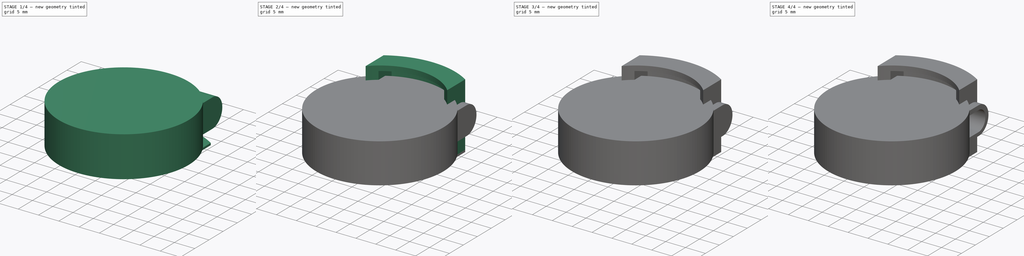
[diagram: build sequence overview — one tinted view per stage of 4, left to right]
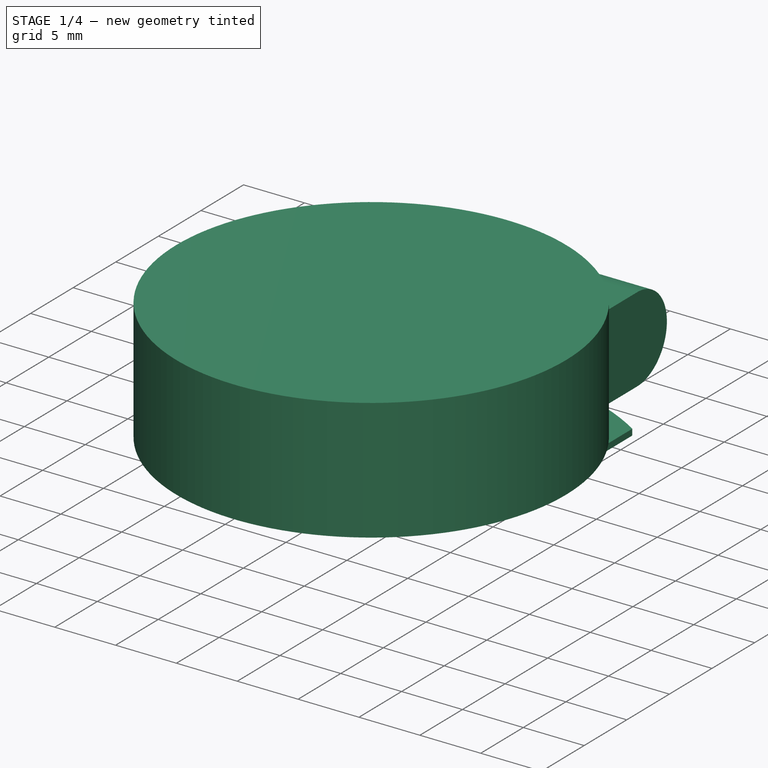
[diagram: stage 1 of 4 — iso view after this stage's code; geometry added in this stage tinted green]
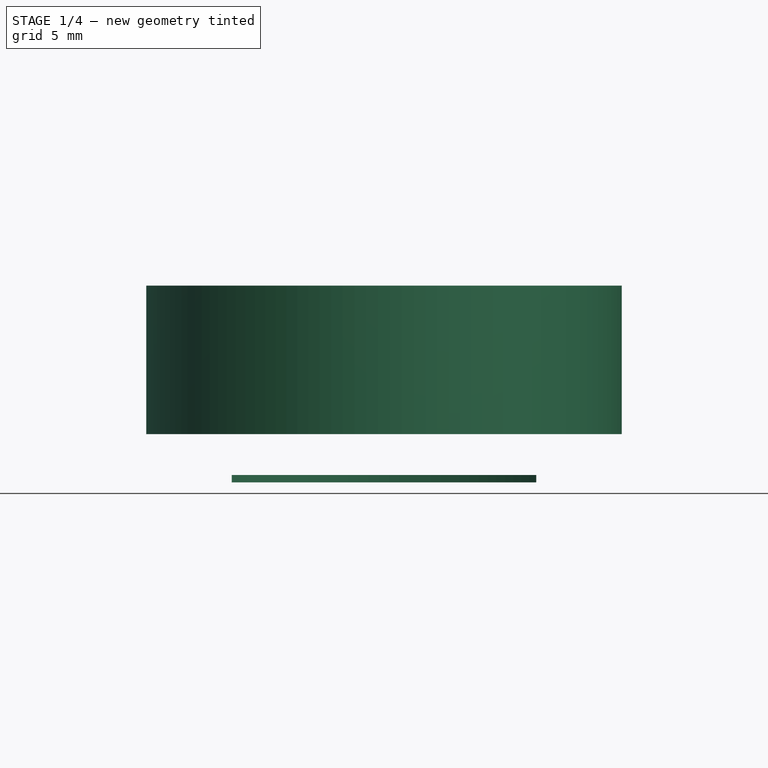
[diagram: stage 1 of 4 — front view after this stage's code; geometry added in this stage tinted green]
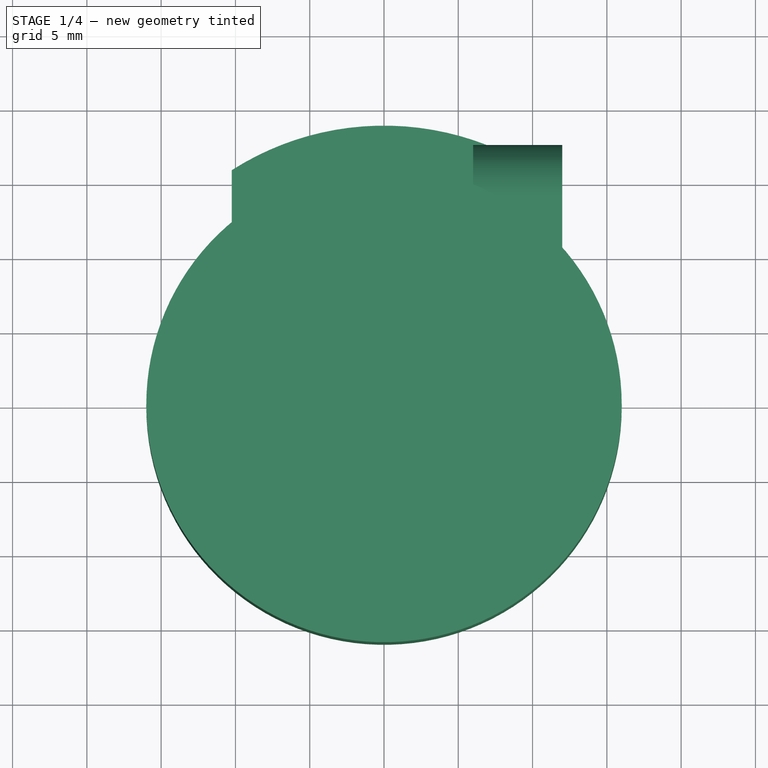
[diagram: stage 1 of 4 — top view after this stage's code; geometry added in this stage tinted green]
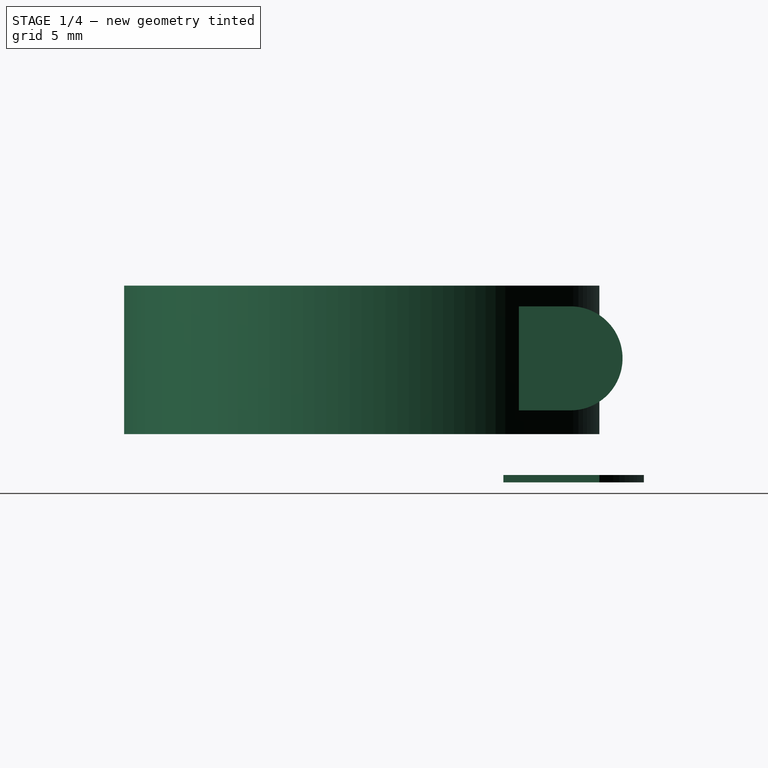
[diagram: stage 1 of 4 — right view after this stage's code; geometry added in this stage tinted green]
FCSTD DOCUMENT  (FreeCAD 0.18R4 (GitTag))
Label: MotorCover
License: All rights reserved
LicenseURL: http://en.wikipedia.org/wiki/All_rights_reserved
objects: Part::Extrusion×5, Sketcher::SketchObject×4, Part::Cylinder×2, Part::MultiFuse×2, Part::Cut×2, PartDesign::Body×1
note: 16 computed .brp shape members not serialized (recipe doc carries the construction recipe); baked Part::Feature solids carry a one-line shape summary decoded from their .brp

FEATURE [Sketcher::SketchObject] Sketch002  label="Cable"
  MapMode = 5
  Placement = pos=(0,0,0) rot=(0.57735,0.57735,0.57735;2.0944rad)
  Support = -> [YZ_Plane]
  sketch-geometry (4):
    g0: ArcOfCircle CenterX=-0.101328 CenterY=0.0569919 CenterZ=0 NormalX=0 NormalY=0 NormalZ=1 AngleXU=0 Radius=3.5 StartAngle=6.28318 EndAngle=9.44106
    g1: LineSegment StartX=3.39867 StartY=0.0569739 StartZ=0 EndX=3.39867 EndY=-8 EndZ=0
    g2: LineSegment StartX=-3.60086 StartY=-8 StartZ=0 EndX=3.39867 EndY=-8 EndZ=0
    g3: LineSegment StartX=-3.60086 StartY=0 StartZ=0 EndX=-3.60086 EndY=-8 EndZ=0
  constraints (11):
    c: Diameter(g0) = 7
    c: Vertical(g1)
    c: Tangent(g1,g0)
    c: Coincident(g0,g1)
    c: Coincident(g2,g1)
    c: Horizontal(g2)
    c: PointOnObject(g0,g-1)
    c: Coincident(g3,g0)
    c: Coincident(g3,g2)
    c: Vertical(g3)
    c: DistanceY(g3,g3) = 8
FEATURE [PartDesign::Body] Body
  Group = -> [Sketch,Sketch001,Sketch002]
  Origin = -> Origin
FEATURE [Part::Extrusion] Extrude003
  Base = -> Sketch002
  Dir = (1,-2e-16,3e-16)
  DirMode = 2
  FaceMakerClass = Part::FaceMakerBullseye
  LengthFwd = 5
  LengthRev = 1
  Placement = pos=(7,14,7) rot=(1,0,0;4.71239rad)
  Solid = true
  Symmetric = false
FEATURE [Part::Cylinder] Cylinder003
  Angle = 360
  AttacherType = Attacher::AttachEngine3D
  Height = 10
  Placement = pos=(0,0,2) rot=(0,0,1;0rad)
  Radius = 16
FEATURE [Part::Extrusion] Extrude005
  Base = -> Sketch
  Dir = (0,0,1)
  DirMode = 2
  FaceMakerClass = Part::FaceMakerBullseye
  LengthFwd = 0.5
  LengthRev = 0
  Placement = pos=(0,0,-1.25) rot=(0,0,1;0rad)
  Solid = true
  Symmetric = false
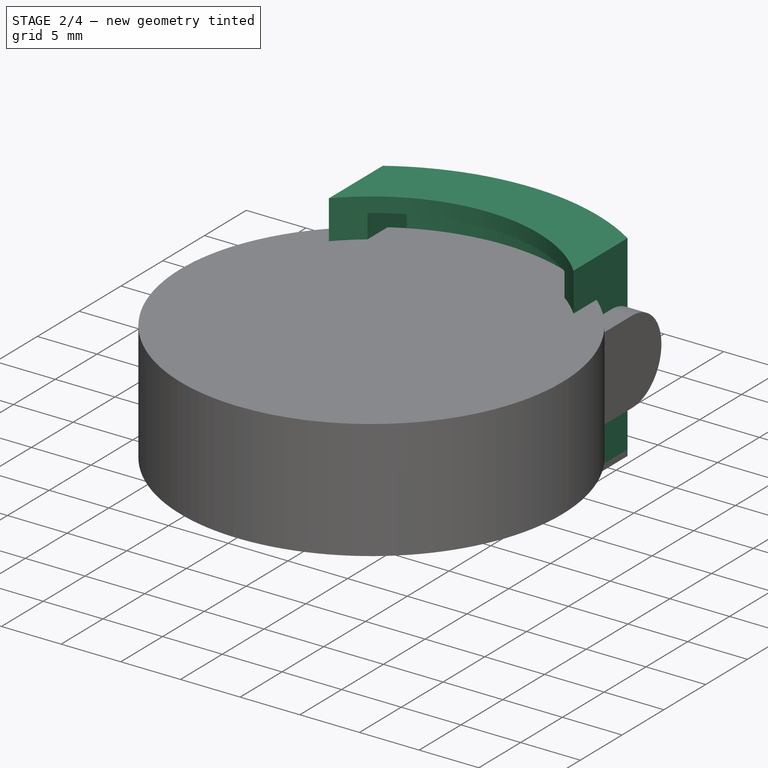
[diagram: stage 2 of 4 — iso view after this stage's code; geometry added in this stage tinted green]
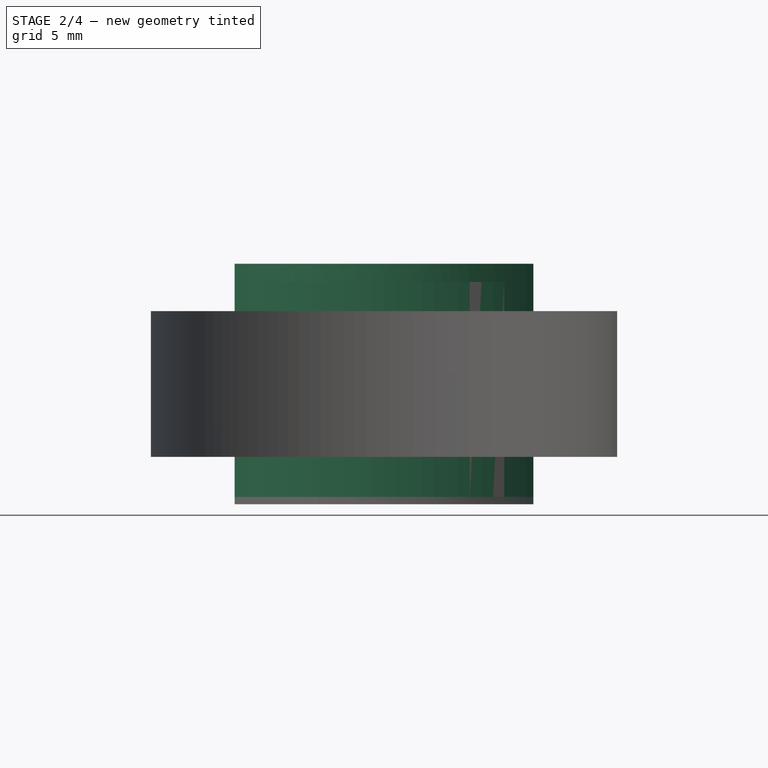
[diagram: stage 2 of 4 — front view after this stage's code; geometry added in this stage tinted green]
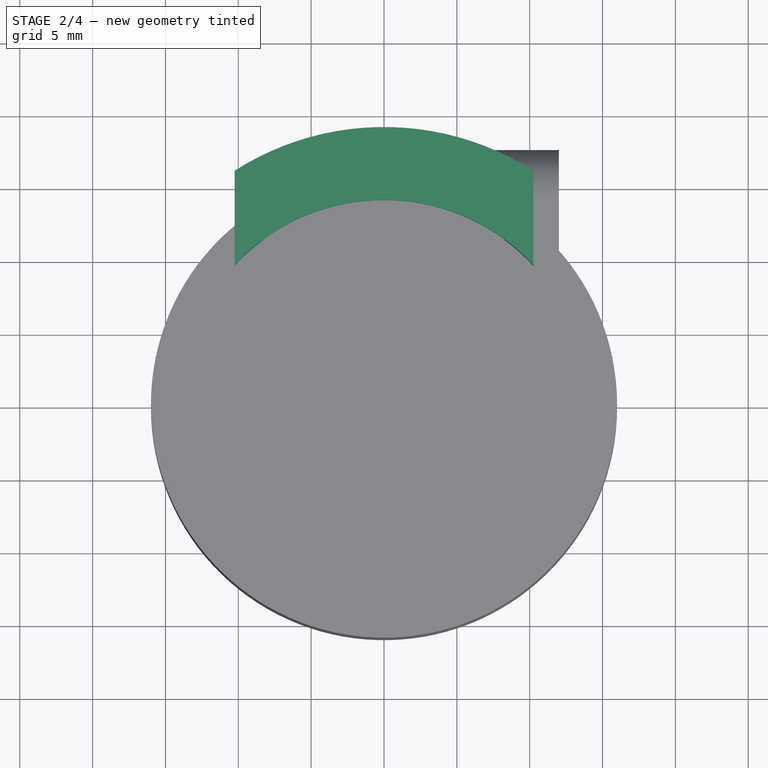
[diagram: stage 2 of 4 — top view after this stage's code; geometry added in this stage tinted green]
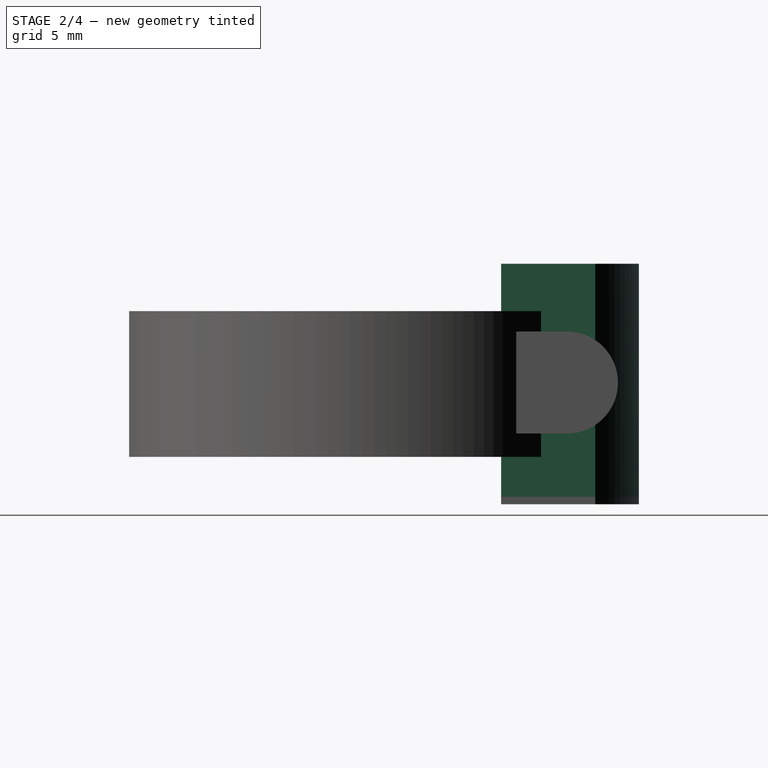
[diagram: stage 2 of 4 — right view after this stage's code; geometry added in this stage tinted green]
FEATURE [Sketcher::SketchObject] Sketch  label="Cover"
  MapMode = 5
  Support = -> [XY_Plane]
  sketch-geometry (7):
    g0: Circle [constr] CenterX=0 CenterY=0 CenterZ=0 NormalX=0 NormalY=0 NormalZ=1 AngleXU=0 Radius=14
    g1: LineSegment [constr] StartX=-7.25 StartY=11.9765 StartZ=0 EndX=7.25 EndY=11.9765 EndZ=0
    g2: ArcOfCircle CenterX=0 CenterY=0 CenterZ=0 NormalX=0 NormalY=0 NormalZ=1 AngleXU=0 Radius=19 StartAngle=1.00098 EndAngle=2.14061
    g3: LineSegment StartX=10.25 StartY=15.998 StartZ=0 EndX=10.25 EndY=9.53612 EndZ=0
    g4: LineSegment StartX=-10.25 StartY=9.53612 StartZ=0 EndX=-10.25 EndY=15.998 EndZ=0
    g5: LineSegment [constr] StartX=7.25 StartY=11.9765 StartZ=0 EndX=10.25 EndY=11.9765 EndZ=0
    g6: ArcOfCircle CenterX=0 CenterY=0 CenterZ=0 NormalX=0 NormalY=0 NormalZ=1 AngleXU=0 Radius=14 StartAngle=0.749334 EndAngle=2.39226
  constraints (21):
    c: Coincident(g0,g-1)
    c: Diameter(g0) = 28
    c: PointOnObject(g1,g0)
    c: PointOnObject(g1,g0)
    c: Horizontal(g1)
    c: DistanceX(g1,g1) = 14.5
    c: Coincident(g2,g-1)
    c: Diameter(g2) = 38
    c: PointOnObject(g3,g0)
    c: Vertical(g3)
    c: Vertical(g4)
    c: Equal(g4,g3)
    c: Coincident(g5,g1)
    c: Horizontal(g5)
    c: DistanceX(g5,g5) = 3
    c: Coincident(g6,g2)
    c: Coincident(g6,g4)
    c: Coincident(g6,g3)
    c: Coincident(g2,g3)
    c: Coincident(g2,g4)
    c: PointOnObject(g5,g3)
FEATURE [Sketcher::SketchObject] Sketch001  label="Cutout"
  MapMode = 5
  Support = -> [XY_Plane]
  sketch-geometry (13):
    g0: ArcOfCircle [constr] CenterX=0 CenterY=0 CenterZ=0 NormalX=0 NormalY=0 NormalZ=1 AngleXU=0 Radius=14 StartAngle=0.940622 EndAngle=2.39226
    g1: ArcOfCircle CenterX=0 CenterY=0 CenterZ=0 NormalX=0 NormalY=0 NormalZ=1 AngleXU=0 Radius=19 StartAngle=1.00098 EndAngle=2.14061
    g2: LineSegment StartX=10.25 StartY=15.998 StartZ=0 EndX=10.25 EndY=9.53612 EndZ=0
    g3: LineSegment StartX=-10.25 StartY=9.53612 StartZ=0 EndX=-10.25 EndY=15.998 EndZ=0
    g4: ArcOfCircle CenterX=0 CenterY=0 CenterZ=0 NormalX=0 NormalY=0 NormalZ=1 AngleXU=0 Radius=18 StartAngle=1.09468 EndAngle=2.04692
    g5: LineSegment [constr] StartX=8.25 StartY=15.998 StartZ=0 EndX=10.25 EndY=15.998 EndZ=0
    g6: LineSegment [constr] StartX=-8.25 StartY=15.998 StartZ=0 EndX=-10.25 EndY=15.998 EndZ=0
    g7: LineSegment [constr] StartX=-7.25 StartY=11.9765 StartZ=0 EndX=-10.25 EndY=11.9765 EndZ=0
    g8: LineSegment StartX=-8.25 StartY=15.998 StartZ=0 EndX=-8.25 EndY=11.3109 EndZ=0
    g9: ArcOfCircle CenterX=0 CenterY=0 CenterZ=0 NormalX=0 NormalY=0 NormalZ=1 AngleXU=0 Radius=14 StartAngle=2.20097 EndAngle=2.39226
    g10: LineSegment StartX=8.25 StartY=15.998 StartZ=0 EndX=8.25 EndY=11.3109 EndZ=0
    g11: ArcOfCircle CenterX=0 CenterY=0 CenterZ=0 NormalX=0 NormalY=0 NormalZ=1 AngleXU=0 Radius=14 StartAngle=0.749334 EndAngle=0.940622
    g12: LineSegment [constr] StartX=10.25 StartY=11.9765 StartZ=0 EndX=7.25 EndY=11.9765 EndZ=0
  constraints (41):
    c: Coincident(g0,g-1)
    c: Diameter(g0) = 28
    c: PointOnObject(g7,g0)
    c: Coincident(g1,g-1)
    c: Diameter(g1) = 38
    c: Vertical(g2)
    c: Vertical(g3)
    c: Equal(g3,g2)
    c: Coincident(g1,g2)
    c: Coincident(g1,g3)
    c: Coincident(g4,g1)
    c: Radius(g4) = 18
    c: PointOnObject(g5,g2)
    c: Horizontal(g5)
    c: Coincident(g6,g4)
    c: Horizontal(g6)
    c: Equal(g6,g5)
    c: PointOnObject(g6,g3)
    c: PointOnObject(g7,g3)
    c: Horizontal(g7)
    c: DistanceX(g7,g7) = 3
    c: Coincident(g5,g4)
    c: DistanceX(g6,g6) = 2
    c: Coincident(g8,g4)
    c: PointOnObject(g8,g0)
    c: Vertical(g8)
    c: Coincident(g9,g1)
    c: Coincident(g9,g3)
    c: Coincident(g9,g8)
    c: Coincident(g10,g4)
    c: Vertical(g10)
    c: PointOnObject(g0,g3)
    c: Coincident(g11,g1)
    c: Coincident(g11,g10)
    c: Coincident(g11,g2)
    c: Coincident(g0,g10)
    c: PointOnObject(g12,g2)
    c: PointOnObject(g12,g0)
    c: Horizontal(g12)
    c: Equal(g7,g12)
    c: DistanceX(g7,g12) = 14.5
FEATURE [Part::Extrusion] Extrude
  Base = -> Sketch001
  Dir = (0,0,1)
  DirMode = 2
  FaceMakerClass = Part::FaceMakerBullseye
  LengthFwd = 14
  LengthRev = 0.75
  Solid = true
  Symmetric = false
FEATURE [Part::Extrusion] Extrude002
  Base = -> Sketch
  Dir = (0,0,1)
  DirMode = 2
  FaceMakerClass = Part::FaceMakerBullseye
  LengthFwd = 1.25
  LengthRev = 0
  Placement = pos=(0,0,14) rot=(0,0,1;0rad)
  Solid = true
  Symmetric = false
FEATURE [Part::MultiFuse] Fusion
  Shapes = -> [Extrude002,Extrude,Extrude005]
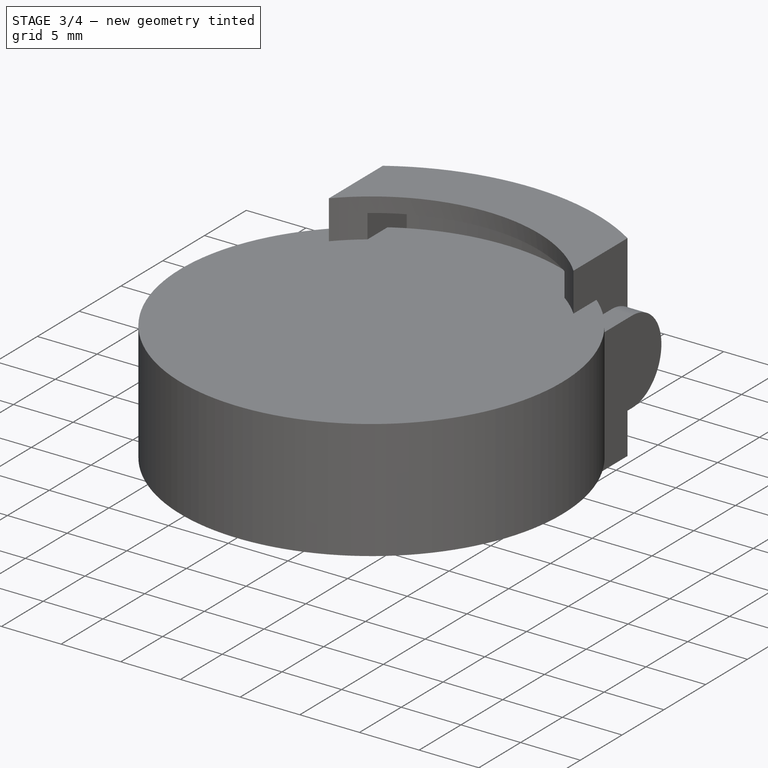
[diagram: stage 3 of 4 — iso view after this stage's code; geometry added in this stage tinted green]
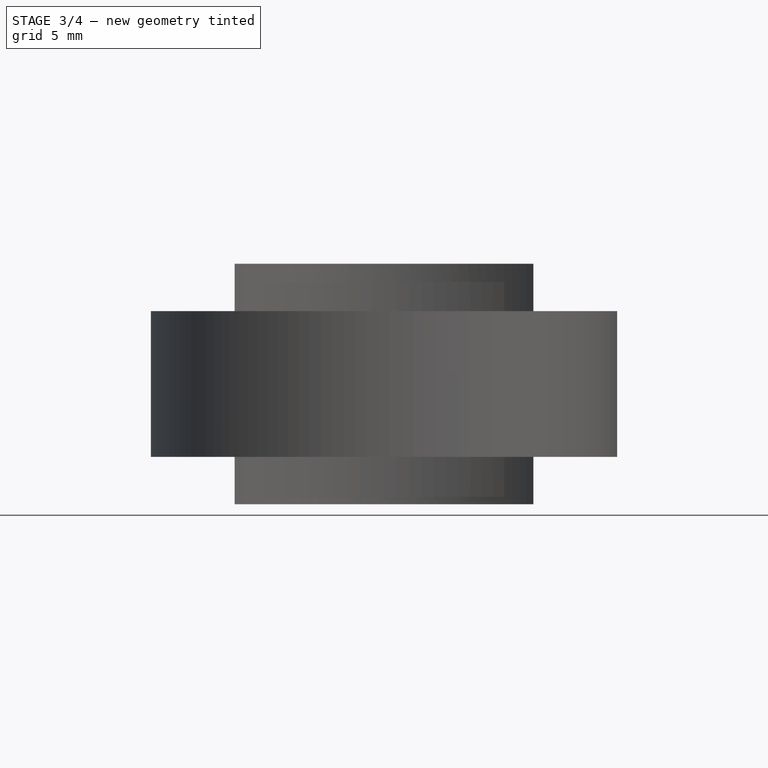
[diagram: stage 3 of 4 — front view after this stage's code; geometry added in this stage tinted green]
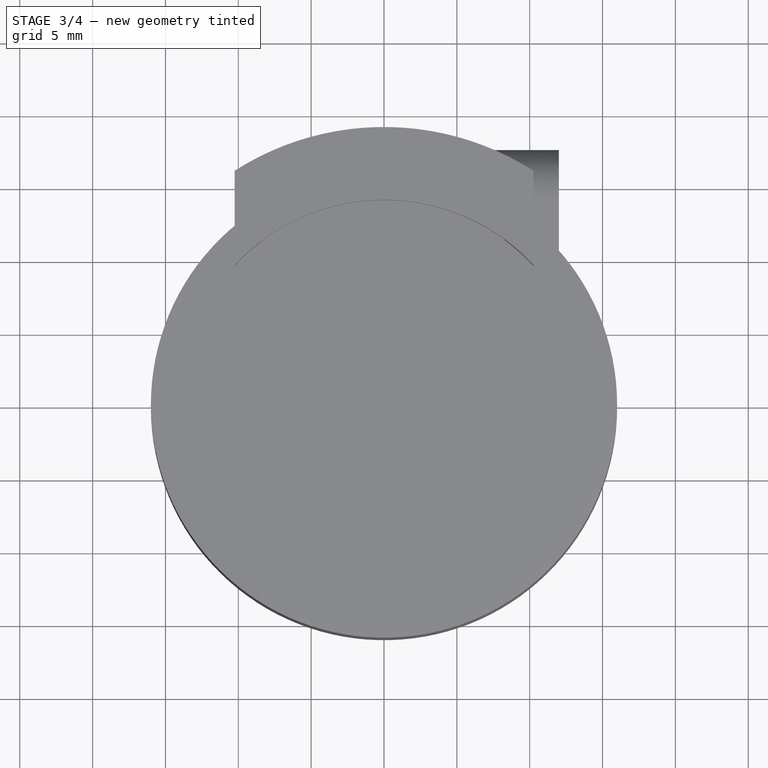
[diagram: stage 3 of 4 — top view after this stage's code; geometry added in this stage tinted green]
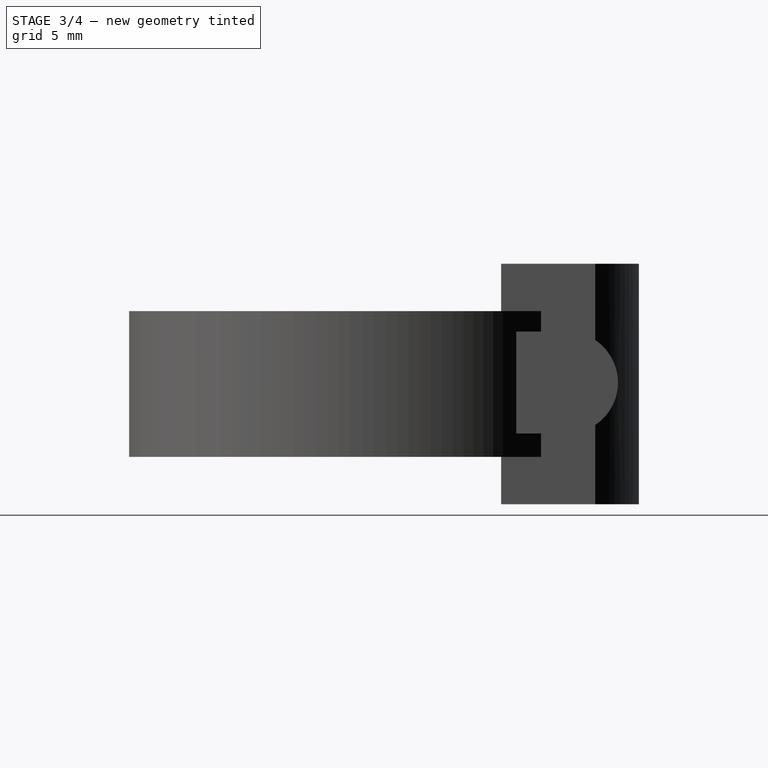
[diagram: stage 3 of 4 — right view after this stage's code; geometry added in this stage tinted green]
FEATURE [Sketcher::SketchObject] Sketch003  label="Cable001"
  MapMode = 5
  Placement = pos=(0,0,0) rot=(0.57735,0.57735,0.57735;2.0944rad)
  Support = -> [YZ_Plane]
  sketch-geometry (4):
    g0: ArcOfCircle CenterX=0 CenterY=0 CenterZ=0 NormalX=0 NormalY=0 NormalZ=1 AngleXU=0 Radius=2.5 StartAngle=6.28319 EndAngle=9.42477
    g1: LineSegment StartX=2.5 StartY=-6.99999 StartZ=0 EndX=2.5 EndY=-2.71481e-07 EndZ=0
    g2: LineSegment StartX=-2.5 StartY=1.33792e-05 StartZ=0 EndX=-2.5 EndY=-6.99999 EndZ=0
    g3: LineSegment StartX=-2.5 StartY=-6.99999 StartZ=0 EndX=2.5 EndY=-6.99999 EndZ=0
  constraints (12):
    c: Coincident(g0,g-1)
    c: Diameter(g0) = 5
    c: Vertical(g1)
    c: Vertical(g2)
    c: Tangent(g2,g0)
    c: Coincident(g0,g1)
    c: Coincident(g0,g2)
    c: Horizontal(g3)
    c: Coincident(g2,g3)
    c: Coincident(g1,g3)
    c: DistanceY(g2,g2) = 7
    c: Tangent(g0,g1)
FEATURE [Part::Extrusion] Extrude004
  Base = -> Sketch003
  Dir = (1,-2e-16,3e-16)
  DirMode = 2
  FaceMakerClass = Part::FaceMakerBullseye
  LengthFwd = 5
  LengthRev = 1
  Placement = pos=(7,14,7) rot=(1,0,0;4.71239rad)
  Solid = true
  Symmetric = false
FEATURE [Part::MultiFuse] Fusion001
  Shapes = -> [Fusion,Extrude003]
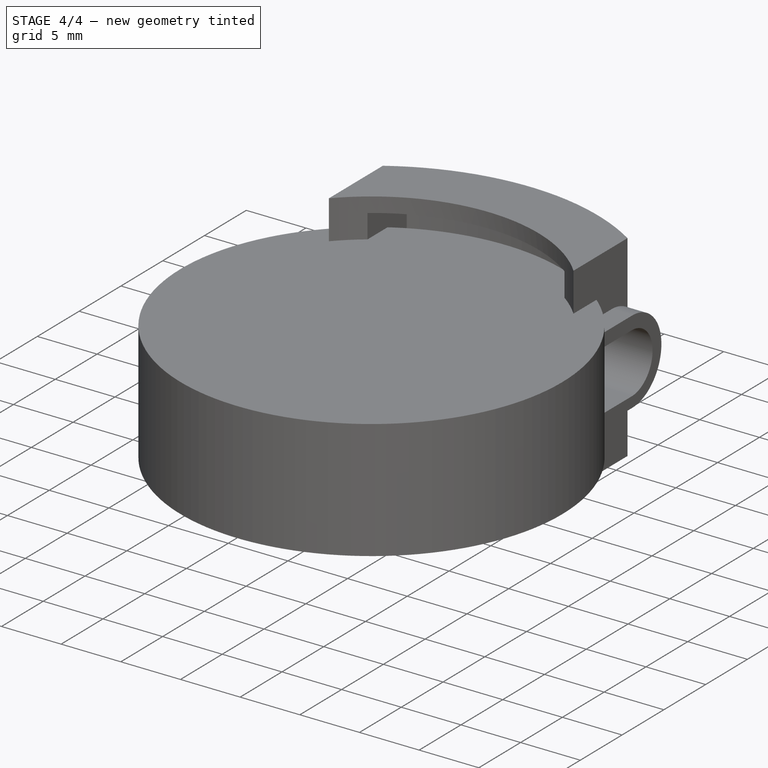
[diagram: stage 4 of 4 — iso view after this stage's code; geometry added in this stage tinted green]
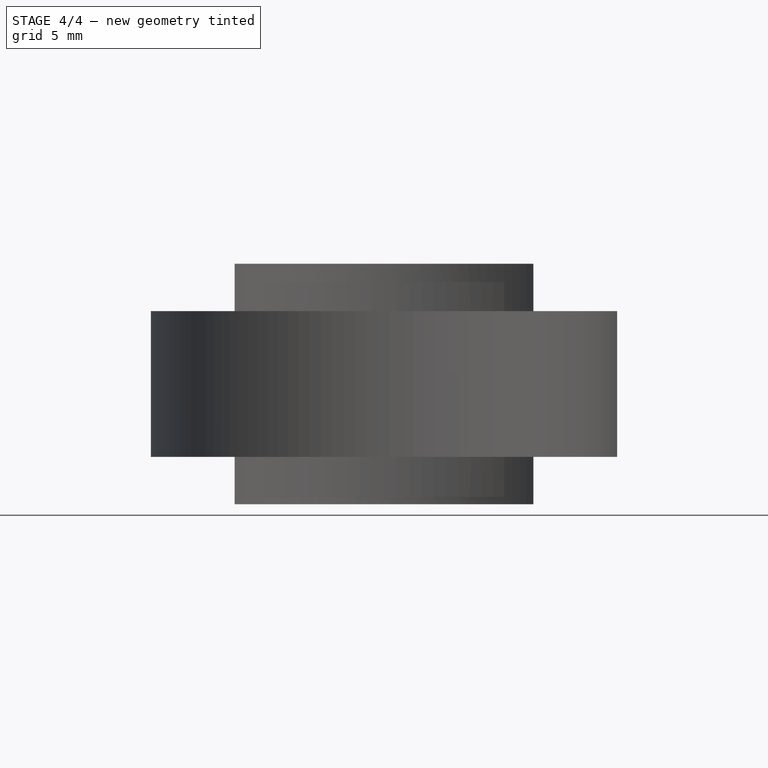
[diagram: stage 4 of 4 — front view after this stage's code; geometry added in this stage tinted green]
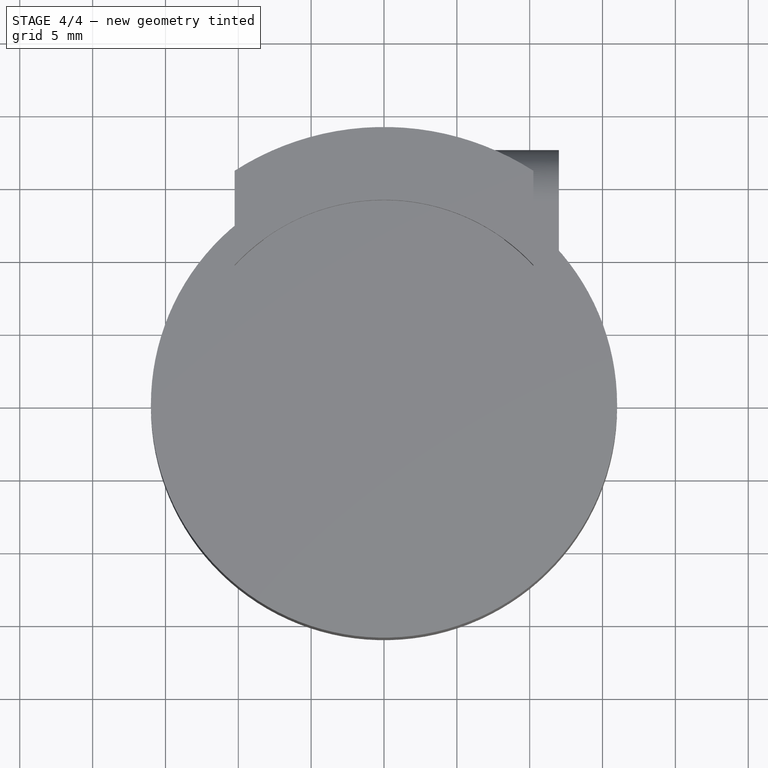
[diagram: stage 4 of 4 — top view after this stage's code; geometry added in this stage tinted green]
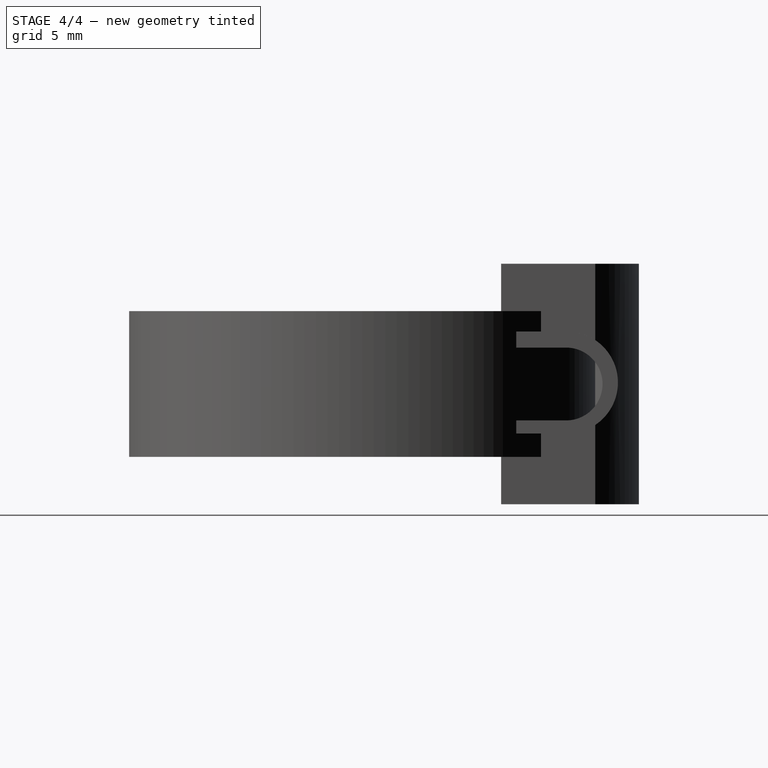
[diagram: stage 4 of 4 — right view after this stage's code; geometry added in this stage tinted green]
FEATURE [Part::Cylinder] Cylinder002
  Angle = 360
  AttacherType = Attacher::AttachEngine3D
  Height = 10
  Placement = pos=(0,0,2) rot=(0,0,1;0rad)
  Radius = 14
FEATURE [Part::Cut] Cut
  Base = -> Fusion001
  Tool = -> Extrude004
FEATURE [Part::Cut] Cut001
  Base = -> Cut
  Tool = -> Cylinder002
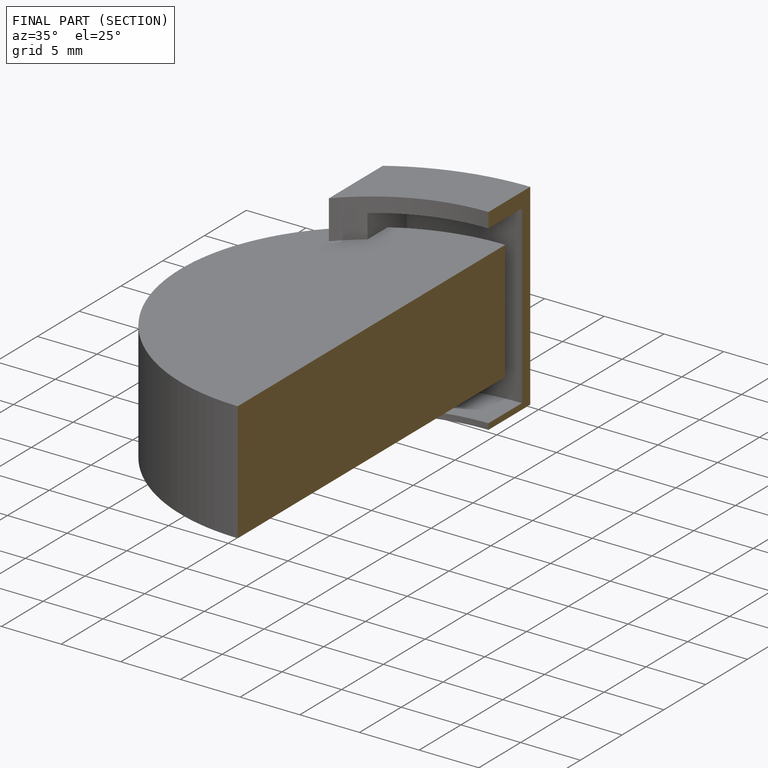
[diagram: finished part — half-section view (interior)]
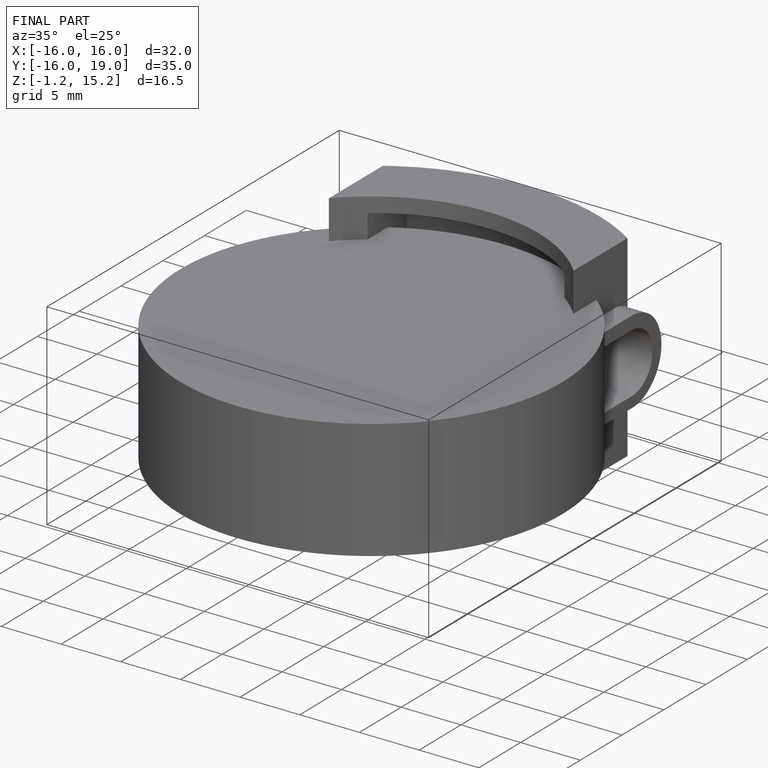
[diagram: finished part — iso view with bounding-box wireframe]
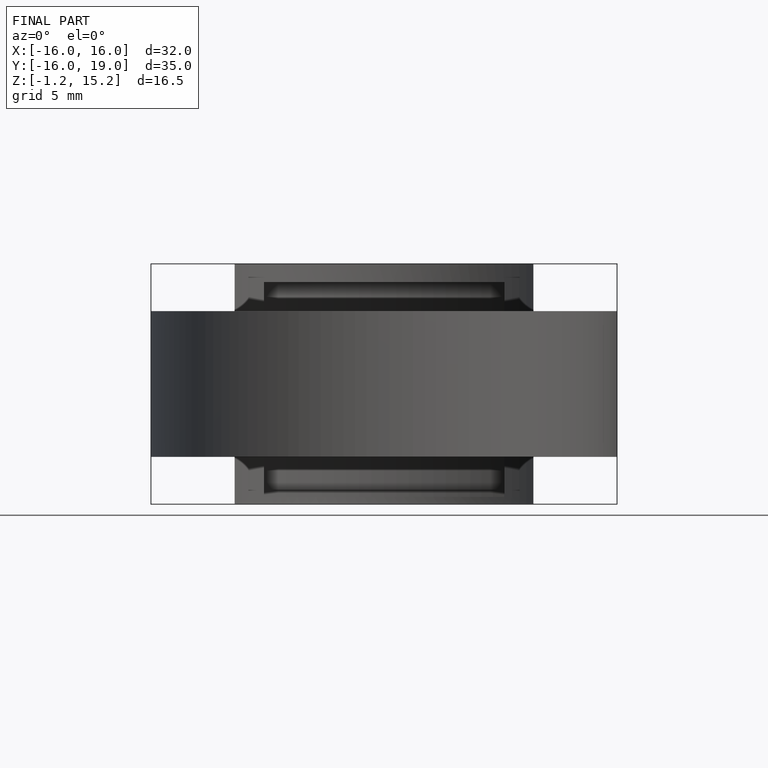
[diagram: finished part — front view with bounding-box wireframe]
